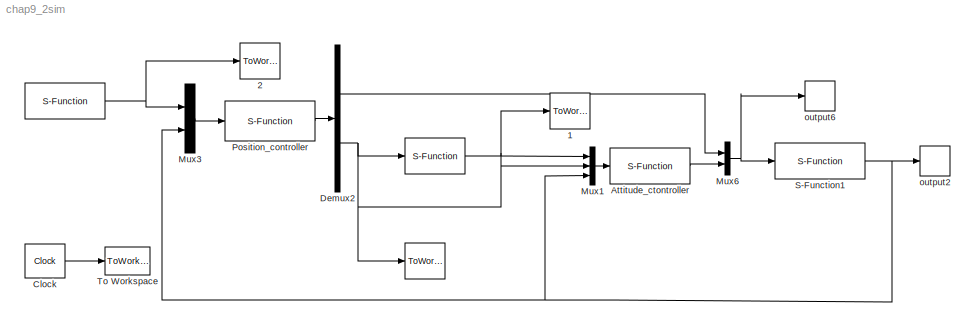
MODEL chap9_2sim
KIND model
BLOCK [S-Function]  
  EnableBusSupport = off
  FunctionName = chap9_2input
  Ports = [0, 1]
  SID = 166
BLOCK [S-Function]   
  EnableBusSupport = off
  FunctionName = chap9_2td
  Ports = [1, 1]
  SID = 172
BLOCK [ToWorkspace]    
  MaxDataPoints = inf
  Ports = [1]
  SID = 117
  SampleTime = -1
  VariableName = thd
BLOCK [ToWorkspace]    1
  MaxDataPoints = inf
  Ports = [1]
  SID = 169
  SampleTime = -1
  VariableName = dthd
BLOCK [ToWorkspace]    2
  MaxDataPoints = inf
  Ports = [1]
  SID = 170
  SampleTime = -1
  VariableName = xd
BLOCK [S-Function] Attitude_ctontroller
  EnableBusSupport = off
  FunctionName = chap9_2A_ctrl
  Ports = [1, 1]
  SID = 50
BLOCK [Clock] Clock
  DisplayTime = on
  SID = 1
BLOCK [Demux] Demux2
  DisplayOption = bar
  Outputs = 2
  Ports = [1, 2]
  SID = 95
BLOCK [Mux] Mux1
  DisplayOption = bar
  Inputs = 3
  Ports = [3, 1]
  SID = 56
BLOCK [Mux] Mux3
  DisplayOption = bar
  Inputs = 2
  Ports = [2, 1]
  SID = 167
BLOCK [Mux] Mux6
  DisplayOption = bar
  Inputs = 2
  Ports = [2, 1]
  SID = 159
BLOCK [S-Function] Position_controller
  EnableBusSupport = off
  FunctionName = chap9_2P_ctrl
  Ports = [1, 1]
  SID = 49
BLOCK [S-Function] S-Function1
  EnableBusSupport = off
  FunctionName = chap9_2plant
  Ports = [1, 1]
  SID = 147
BLOCK [ToWorkspace] To Workspace
  MaxDataPoints = inf
  Ports = [1]
  SID = 9
  SampleTime = -1
  VariableName = t
BLOCK [ToWorkspace] output2
  MaxDataPoints = inf
  Ports = [1]
  SID = 150
  SampleTime = -1
  VariableName = x
BLOCK [ToWorkspace] output6
  MaxDataPoints = inf
  Ports = [1]
  SID = 158
  SampleTime = -1
  VariableName = ut
NET   :1 ->    1:1, Mux1:1
NET  :1 ->    2:1, Mux3:1
LINE Attitude_ctontroller:1 -> Mux6:2
LINE Clock:1 -> To Workspace:1
LINE Demux2:1 -> Mux6:1
NET Demux2:2 ->    :1,   :1, Mux1:2
LINE Mux1:1 -> Attitude_ctontroller:1
LINE Mux3:1 -> Position_controller:1
NET Mux6:1 -> S-Function1:1, output6:1
LINE Position_controller:1 -> Demux2:1
NET S-Function1:1 -> Mux1:3, Mux3:2, output2:1
note: NET lines group one-source signal fan-out (src -> all destinations, sorted); 1:1 wires keep LINE
